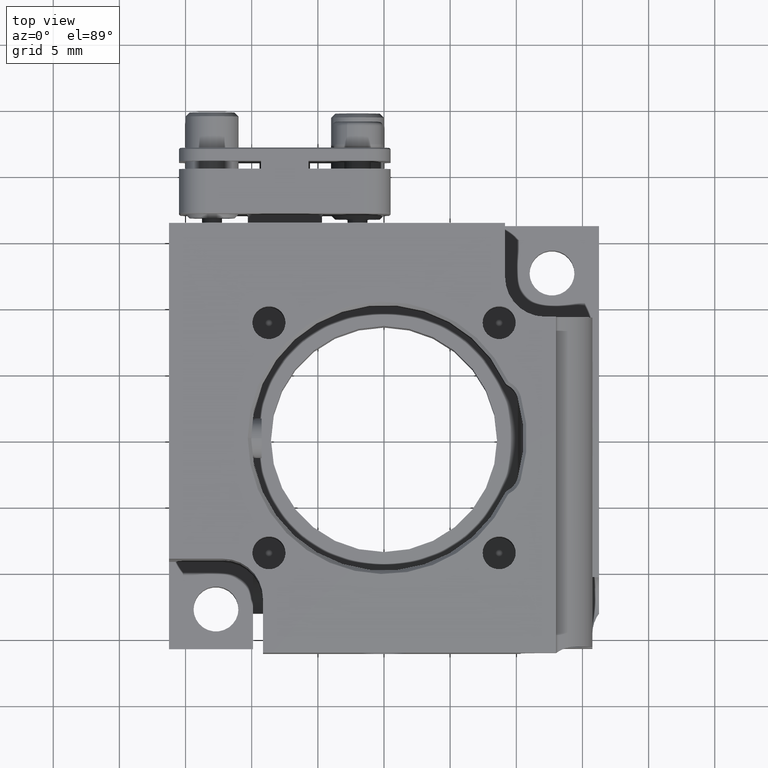
[diagram: clean part render]
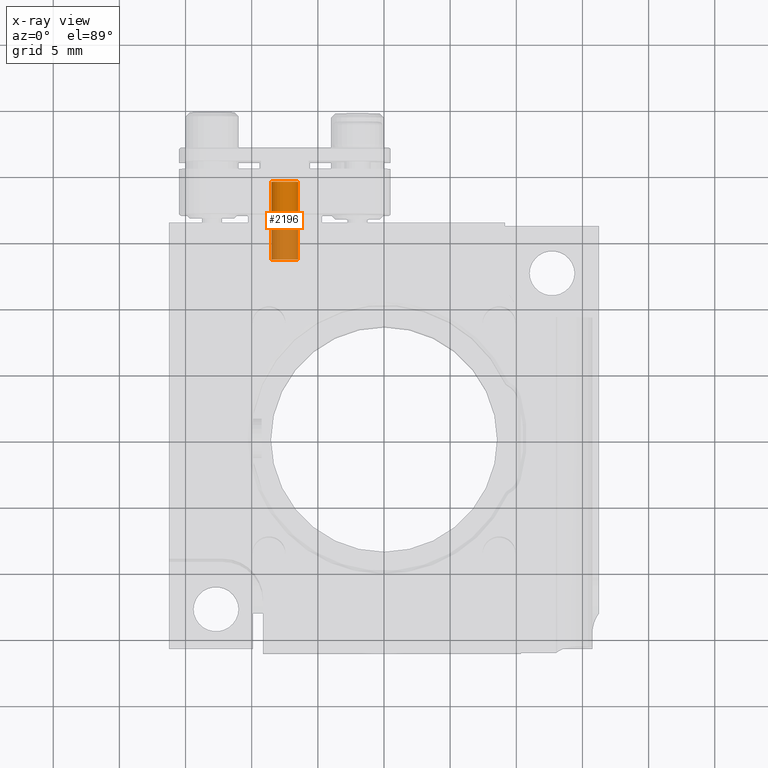
[diagram: x-ray — body ghosted, one internal face saturated and labeled with its STEP entity id]
A machine part, top view, then the same camera in x-ray: the body is ghosted and one INTERNAL B-rep face — a face not visible from any outside direction — is saturated and labeled: STEP entity #2196.
In plain terms, the highlighted cylindrical surface (edge-blend (fillet) strip) has radius 1 mm, axis along (0, 1, 0).
Its self-contained STEP definition (entity closure, byte-faithful):
#6 = AXIS2_PLACEMENT_3D ( 'NONE', #12889, #6700, #1660 ) ;
#110 = DIRECTION ( 'NONE',  ( 0.000000000000000000, 0.000000000000000000, 1.000000000000000000 ) ) ;
#219 = CARTESIAN_POINT ( 'NONE',  ( 1.224646799147353700E-16, 0.000000000000000000, -1.000000000000000000 ) ) ;
#530 = DIRECTION ( 'NONE',  ( 0.000000000000000000, 0.000000000000000000, 1.000000000000000000 ) ) ;
#1123 = CARTESIAN_POINT ( 'NONE',  ( 0.000000000000000000, 0.000000000000000000, 0.000000000000000000 ) ) ;
#1660 = DIRECTION ( 'NONE',  ( 0.000000000000000000, 0.000000000000000000, -1.000000000000000000 ) ) ;
#2189 = CARTESIAN_POINT ( 'NONE',  ( 0.000000000000000000, -5.900000000000002132, 1.000000000000000000 ) ) ;
#2196 = ADVANCED_FACE ( 'NONE', ( #3514 ), #2567, .T. ) ;
#2377 = DIRECTION ( 'NONE',  ( 0.000000000000000000, 1.000000000000000000, 0.000000000000000000 ) ) ;
#2567 = CYLINDRICAL_SURFACE ( 'NONE', #4309, 1.000000000000003331 ) ;
#2596 = EDGE_CURVE ( 'NONE', #12126, #13240, #10780, .T. ) ;
#3051 = CARTESIAN_POINT ( 'NONE',  ( 1.224646799147353700E-16, -5.900000000000002132, -1.000000000000000000 ) ) ;
#3059 = CARTESIAN_POINT ( 'NONE',  ( 0.000000000000000000, 0.000000000000000000, 1.000000000000003331 ) ) ;
#3342 = VECTOR ( 'NONE', #5664, 1000.000000000000000 ) ;
#3514 = FACE_OUTER_BOUND ( 'NONE', #11803, .T. ) ;
#4309 = AXIS2_PLACEMENT_3D ( 'NONE', #9694, #2377, #530 ) ;
#5664 = DIRECTION ( 'NONE',  ( 0.000000000000000000, 1.000000000000000000, 0.000000000000000000 ) ) ;
#6381 = ORIENTED_EDGE ( 'NONE', *, *, #2596, .T. ) ;
#6430 = ORIENTED_EDGE ( 'NONE', *, *, #11029, .T. ) ;
#6700 = DIRECTION ( 'NONE',  ( -0.000000000000000000, 1.000000000000000000, -0.000000000000000000 ) ) ;
#7146 = AXIS2_PLACEMENT_3D ( 'NONE', #1123, #9323, #110 ) ;
#7839 = CARTESIAN_POINT ( 'NONE',  ( 0.000000000000000000, -5.999999999999998224, 1.000000000000003331 ) ) ;
#7877 = CARTESIAN_POINT ( 'NONE',  ( 1.224646799147357398E-16, -5.999999999999998224, -1.000000000000003331 ) ) ;
#8248 = ORIENTED_EDGE ( 'NONE', *, *, #13099, .T. ) ;
#8404 = ORIENTED_EDGE ( 'NONE', *, *, #9462, .F. ) ;
#9067 = VERTEX_POINT ( 'NONE', #3051 ) ;
#9323 = DIRECTION ( 'NONE',  ( -0.000000000000000000, -1.000000000000000000, -0.000000000000000000 ) ) ;
#9462 = EDGE_CURVE ( 'NONE', #11886, #13240, #12963, .T. ) ;
#9694 = CARTESIAN_POINT ( 'NONE',  ( 0.000000000000000000, -5.999999999999998224, 0.000000000000000000 ) ) ;
#10780 = CIRCLE ( 'NONE', #7146, 1.000000000000003331 ) ;
#11029 = EDGE_CURVE ( 'NONE', #11886, #9067, #11598, .T. ) ;
#11598 = CIRCLE ( 'NONE', #6, 1.000000000000003331 ) ;
#11803 = EDGE_LOOP ( 'NONE', ( #6430, #8248, #6381, #8404 ) ) ;
#11886 = VERTEX_POINT ( 'NONE', #2189 ) ;
#11952 = DIRECTION ( 'NONE',  ( 0.000000000000000000, 1.000000000000000000, 0.000000000000000000 ) ) ;
#12126 = VERTEX_POINT ( 'NONE', #219 ) ;
#12238 = VECTOR ( 'NONE', #11952, 1000.000000000000000 ) ;
#12801 = LINE ( 'NONE', #7877, #3342 ) ;
#12889 = CARTESIAN_POINT ( 'NONE',  ( 0.000000000000000000, -5.900000000000002132, 0.000000000000000000 ) ) ;
#12963 = LINE ( 'NONE', #7839, #12238 ) ;
#13099 = EDGE_CURVE ( 'NONE', #9067, #12126, #12801, .T. ) ;
#13240 = VERTEX_POINT ( 'NONE', #3059 ) ;